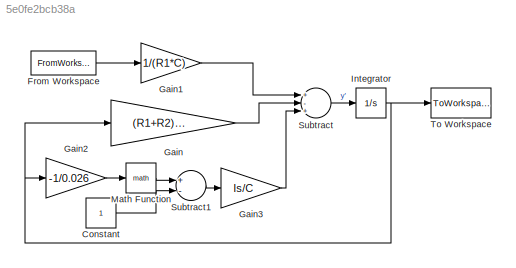
MODEL slx_5e0fe2bcb38a
KIND model
CONFIG AbsTol = auto
CONFIG EnableMultiTasking = off
CONFIG FixedStep = auto
CONFIG MaxStep = auto
CONFIG MinStep = auto
CONFIG RelTol = 1e-3
CONFIG SampleTimeConstraint = Unconstrained
CONFIG Solver = FixedStepAuto
CONFIG SolverName = FixedStepAuto
CONFIG StartTime = 0.0
CONFIG StopTime = SimulationTime
BLOCK [Constant] Constant
BLOCK [FromWorkspace] From Workspace
  SampleTime = theta
  VariableName = [x dataIN]
  ZeroCross = on
BLOCK [Gain] Gain
  Gain = (R1+R2)/(R1*R2*C)
  OutDataTypeStr = Inherit: Inherit via internal rule
  ParamDataTypeStr = Inherit: Inherit via internal rule
  SaturateOnIntegerOverflow = off
BLOCK [Gain] Gain1
  Gain = 1/(R1*C)
  OutDataTypeStr = Inherit: Inherit via internal rule
  ParamDataTypeStr = Inherit: Inherit via internal rule
  SaturateOnIntegerOverflow = off
BLOCK [Gain] Gain2
  Gain = -1/0.026
  OutDataTypeStr = Inherit: Inherit via internal rule
  ParamDataTypeStr = Inherit: Inherit via internal rule
  SaturateOnIntegerOverflow = off
BLOCK [Gain] Gain3
  Gain = Is/C
  OutDataTypeStr = Inherit: Inherit via internal rule
  ParamDataTypeStr = Inherit: Inherit via internal rule
  SaturateOnIntegerOverflow = off
BLOCK [Integrator] Integrator
  Ports = [1, 1]
BLOCK [Math] Math Function
  Ports = [1, 1]
BLOCK [Sum] Subtract
  InputSameDT = off
  Inputs = +-+
  OutDataTypeStr = Inherit: Inherit via internal rule
  Ports = [3, 1]
  SaturateOnIntegerOverflow = off
BLOCK [Sum] Subtract1
  InputSameDT = off
  Inputs = +-
  OutDataTypeStr = Inherit: Inherit via internal rule
  Ports = [2, 1]
  SaturateOnIntegerOverflow = off
BLOCK [ToWorkspace] To Workspace
  FixptAsFi = on
  MaxDataPoints = inf
  Ports = [1]
  SampleTime = theta
  VariableName = dataOUT
LINE Constant:1 -> Subtract1:2
LINE From Workspace:1 -> Gain1:1
LINE Gain1:1 -> Subtract:1
LINE Gain2:1 -> Math Function:1
LINE Gain3:1 -> Subtract:3
LINE Gain:1 -> Subtract:2
NET Integrator:1 -> Gain2:1, Gain:1, To Workspace:1
LINE Math Function:1 -> Subtract1:1
LINE Subtract1:1 -> Gain3:1
LINE Subtract:1 -> Integrator:1
note: NET lines group one-source signal fan-out (src -> all destinations, sorted); 1:1 wires keep LINE
